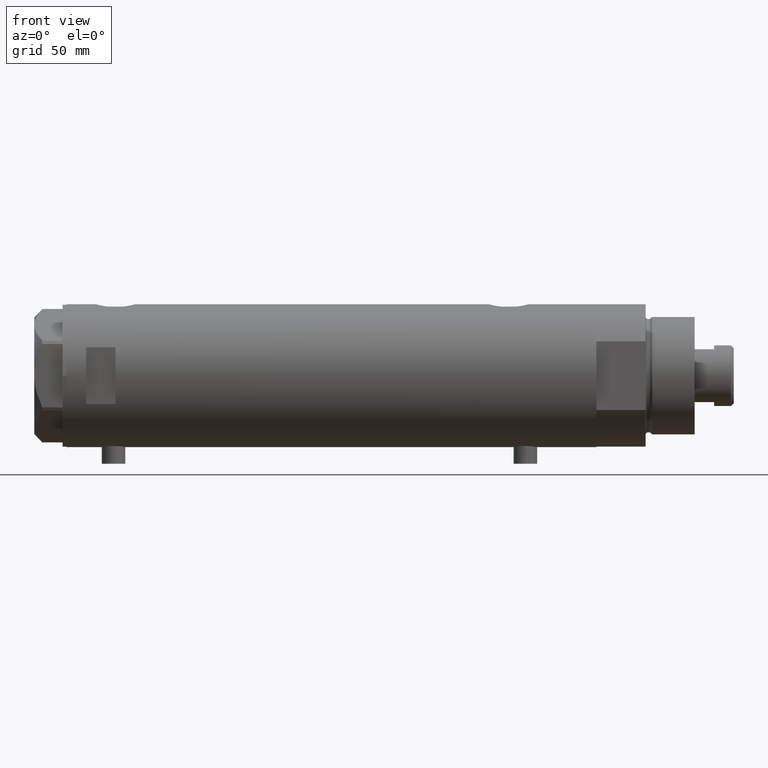
[diagram: clean part render]
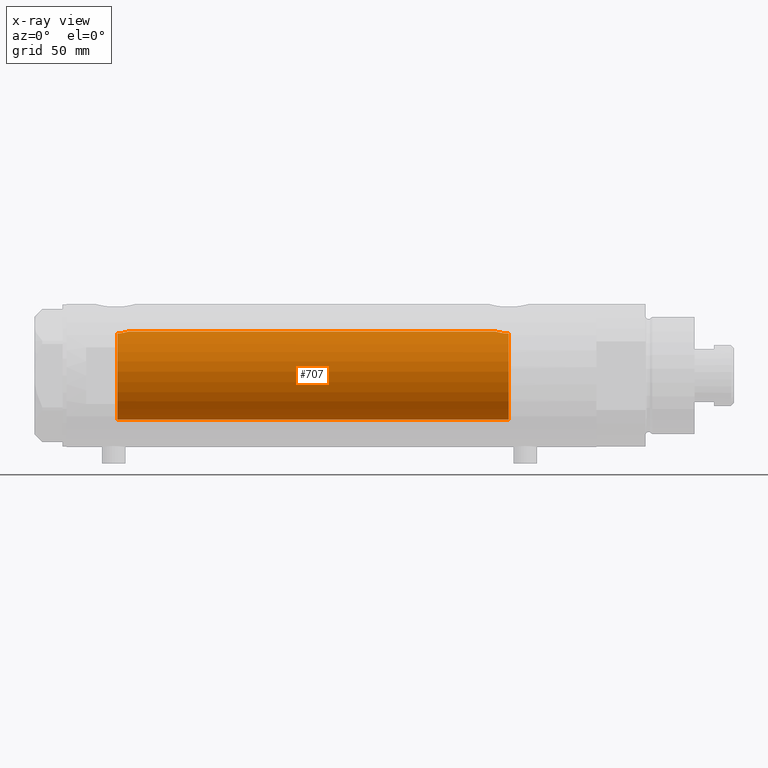
[diagram: x-ray — body ghosted, one internal face saturated and labeled with its STEP entity id]
A machine part, front view, then the same camera in x-ray: the body is ghosted and one INTERNAL B-rep face — a face not visible from any outside direction — is saturated and labeled: STEP entity #707.
In plain terms, the highlighted cylindrical surface (partial cylindrical patch) has radius 22.5 mm, axis along (1, 0, -0).
Its self-contained STEP definition (entity closure, byte-faithful):
#21 = VECTOR ( 'NONE', #246, 1000.000000000000000 ) ;
#148 = AXIS2_PLACEMENT_3D ( 'NONE', #4270, #1979, #1263 ) ;
#210 = CARTESIAN_POINT ( 'NONE',  ( 21.53958216864941733, -6.503568251352485952, 109.3999999999999915 ) ) ;
#246 = DIRECTION ( 'NONE',  ( -0.000000000000000000, -0.000000000000000000, -1.000000000000000000 ) ) ;
#257 = CARTESIAN_POINT ( 'NONE',  ( 21.58054822171799714, -6.366927345060002352, -88.88402244069204983 ) ) ;
#287 = CARTESIAN_POINT ( 'NONE',  ( 0.000000000000000000, 0.000000000000000000, 109.3999999999999915 ) ) ;
#307 = CARTESIAN_POINT ( 'NONE',  ( 21.94965745907476773, -4.947937303812818044, -86.25715039555707619 ) ) ;
#445 = AXIS2_PLACEMENT_3D ( 'NONE', #287, #929, #1560 ) ;
#489 = CARTESIAN_POINT ( 'NONE',  ( 22.30010606974974863, -3.011418659624944372, 104.5367890168579663 ) ) ;
#507 = DIRECTION ( 'NONE',  ( -0.000000000000000000, -0.000000000000000000, -1.000000000000000000 ) ) ;
#581 = ORIENTED_EDGE ( 'NONE', *, *, #1146, .F. ) ;
#606 = CARTESIAN_POINT ( 'NONE',  ( 21.76737372098157763, -5.695831585513579043, -87.29847891606891608 ) ) ;
#612 = CARTESIAN_POINT ( 'NONE',  ( 21.58601844322714669, -6.349099877921651647, 108.6290481141031563 ) ) ;
#675 = ORIENTED_EDGE ( 'NONE', *, *, #2461, .T. ) ;
#707 = ADVANCED_FACE ( 'NONE', ( #3527 ), #1731, .F. ) ;
#751 = VECTOR ( 'NONE', #507, 1000.000000000000000 ) ;
#768 = VERTEX_POINT ( 'NONE', #3603 ) ;
#837 = CARTESIAN_POINT ( 'NONE',  ( 22.34502592404423638, -2.661921217589550803, 104.3697586785211939 ) ) ;
#929 = DIRECTION ( 'NONE',  ( 0.000000000000000000, 0.000000000000000000, 1.000000000000000000 ) ) ;
#1001 = EDGE_CURVE ( 'NONE', #1873, #2384, #2899, .T. ) ;
#1003 = CARTESIAN_POINT ( 'NONE',  ( 22.47508397315214523, -1.079737406574094560, -84.10558251353130288 ) ) ;
#1091 = CARTESIAN_POINT ( 'NONE',  ( -22.50000000000000355, 0.000000000000000000, -90.59999999999998010 ) ) ;
#1146 = EDGE_CURVE ( 'NONE', #3305, #4378, #1215, .T. ) ;
#1215 = B_SPLINE_CURVE_WITH_KNOTS ( 'NONE', 3,
 ( #3988, #1533, #3645, #3918, #3218, #1862, #3236, #837, #489, #1877, #3252, #1969, #4438, #1620, #1436, #3792, #1354, #4086, #1327, #612, #1673, #210 ),
 .UNSPECIFIED., .F., .F.,
 ( 4, 2, 2, 2, 2, 2, 2, 2, 2, 2, 4 ),
 ( 0.000000000000000000, 0.001167753031984884466, 0.001751629547977323013, 0.002335506063969761126, 0.003503259095954651663, 0.004087135611947107991, 0.004671012127939563885, 0.005838765159924475673, 0.007006518191909386593, 0.008174271223894297514, 0.009342024255879211037 ),
 .UNSPECIFIED. ) ;
#1263 = DIRECTION ( 'NONE',  ( -1.000000000000000000, 0.000000000000000000, 0.000000000000000000 ) ) ;
#1270 = CARTESIAN_POINT ( 'NONE',  ( 21.53958216864941733, -6.503568251352485952, 109.3999999999999915 ) ) ;
#1291 = B_SPLINE_CURVE_WITH_KNOTS ( 'NONE', 3,
 ( #3660, #3383, #1645, #257, #2689, #3094, #1689, #606, #3077, #1714, #4384, #307, #3004, #4475, #1963, #2643, #1323, #4456, #3050, #1003, #1374, #4432, #2719, #3337 ),
 .UNSPECIFIED., .F., .F.,
 ( 4, 2, 2, 2, 2, 2, 2, 2, 2, 2, 2, 4 ),
 ( 0.01034583194474684824, 0.01163831905076679121, 0.01293080615678673592, 0.01357704970979672736, 0.01422329326280671880, 0.01486953681581670850, 0.01551578036882670167, 0.01680826747484668107, 0.01810075458086666048, 0.01939324168688664335, 0.02003948523989663652, 0.02068572879290662969 ),
 .UNSPECIFIED. ) ;
#1323 = CARTESIAN_POINT ( 'NONE',  ( 22.31324851815826094, -2.920315458573307321, -84.68792883542266736 ) ) ;
#1327 = CARTESIAN_POINT ( 'NONE',  ( 21.65869182728109621, -6.096583454856811635, 107.8942047130795601 ) ) ;
#1354 = CARTESIAN_POINT ( 'NONE',  ( 21.80246547822149239, -5.562416037700062432, 106.8635862820582361 ) ) ;
#1374 = CARTESIAN_POINT ( 'NONE',  ( 22.48448975507857384, -0.8627579744204254553, -84.07320172378659606 ) ) ;
#1415 = DIRECTION ( 'NONE',  ( -0.000000000000000000, -0.000000000000000000, -1.000000000000000000 ) ) ;
#1436 = CARTESIAN_POINT ( 'NONE',  ( 21.97180182460413889, -4.853116730831949610, 105.9398793933508642 ) ) ;
#1533 = CARTESIAN_POINT ( 'NONE',  ( 22.50000000000000355, -0.3950131823107573270, 103.8200000000000074 ) ) ;
#1560 = DIRECTION ( 'NONE',  ( 1.000000000000000000, 0.000000000000000000, 0.000000000000000000 ) ) ;
#1620 = CARTESIAN_POINT ( 'NONE',  ( 22.03004750576872439, -4.584392313773037131, 105.6639649762145012 ) ) ;
#1645 = CARTESIAN_POINT ( 'NONE',  ( 21.52981735982749711, -6.536420260328984710, -89.72962480407468888 ) ) ;
#1673 = CARTESIAN_POINT ( 'NONE',  ( 21.55747828655794507, -6.444296957919021018, 109.0145250978095106 ) ) ;
#1689 = CARTESIAN_POINT ( 'NONE',  ( 21.71318796968428444, -5.899027407341884022, -87.67698536342957993 ) ) ;
#1714 = CARTESIAN_POINT ( 'NONE',  ( 21.85557760450272013, -5.347779544816336994, -86.76030284772028267 ) ) ;
#1731 = CYLINDRICAL_SURFACE ( 'NONE', #3900, 22.50000000000000355 ) ;
#1862 = CARTESIAN_POINT ( 'NONE',  ( 22.41838729966076826, -1.923945741267791609, 104.1045311859534195 ) ) ;
#1863 = CARTESIAN_POINT ( 'NONE',  ( 21.51635656889892800, -6.580000000000002736, -90.59999999999998010 ) ) ;
#1873 = VERTEX_POINT ( 'NONE', #1863 ) ;
#1877 = CARTESIAN_POINT ( 'NONE',  ( 22.22503367403958663, -3.510871893734214932, 104.8315576783196548 ) ) ;
#1963 = CARTESIAN_POINT ( 'NONE',  ( 22.14149984669489157, -4.016690124115201321, -85.37069324031261885 ) ) ;
#1969 = CARTESIAN_POINT ( 'NONE',  ( 22.14407575385478921, -3.989443360685411832, 105.1637256297126157 ) ) ;
#1979 = DIRECTION ( 'NONE',  ( 0.000000000000000000, 0.000000000000000000, -1.000000000000000000 ) ) ;
#2212 = EDGE_CURVE ( 'NONE', #1873, #768, #1291, .T. ) ;
#2384 = VERTEX_POINT ( 'NONE', #1091 ) ;
#2461 = EDGE_CURVE ( 'NONE', #3169, #4378, #3685, .T. ) ;
#2643 = CARTESIAN_POINT ( 'NONE',  ( 22.25875518649490559, -3.305696985817205835, -84.89458010501985541 ) ) ;
#2689 = CARTESIAN_POINT ( 'NONE',  ( 21.61760927586798431, -6.241696587716365485, -88.47279459237279298 ) ) ;
#2719 = CARTESIAN_POINT ( 'NONE',  ( 22.50000000000000711, -0.2154191524768910848, -84.01999999999998181 ) ) ;
#2722 = EDGE_LOOP ( 'NONE', ( #581, #3766, #3658, #3183, #3669, #675 ) ) ;
#2756 = CARTESIAN_POINT ( 'NONE',  ( 0.000000000000000000, 0.000000000000000000, 135.4000000000000057 ) ) ;
#2899 = CIRCLE ( 'NONE', #148, 22.50000000000000355 ) ;
#2930 = CARTESIAN_POINT ( 'NONE',  ( 22.50000000000000355, 2.755455298081545172E-15, 135.4000000000000057 ) ) ;
#3004 = CARTESIAN_POINT ( 'NONE',  ( 21.98210460142358968, -4.802207463187402325, -86.09652004334174080 ) ) ;
#3050 = CARTESIAN_POINT ( 'NONE',  ( 22.43844456282249666, -1.716722304487073636, -84.23314599255652979 ) ) ;
#3077 = CARTESIAN_POINT ( 'NONE',  ( 21.79602751566978824, -5.585535159907477620, -87.11520197735673321 ) ) ;
#3094 = CARTESIAN_POINT ( 'NONE',  ( 21.68753676189998458, -5.992345198295746300, -87.87327232579065139 ) ) ;
#3169 = VERTEX_POINT ( 'NONE', #4397 ) ;
#3183 = ORIENTED_EDGE ( 'NONE', *, *, #1001, .T. ) ;
#3218 = CARTESIAN_POINT ( 'NONE',  ( 22.44752031034920492, -1.547413406105163203, 104.0015621785797180 ) ) ;
#3236 = CARTESIAN_POINT ( 'NONE',  ( 22.40145249794127125, -2.111617392236895263, 104.1649554348197455 ) ) ;
#3252 = CARTESIAN_POINT ( 'NONE',  ( 22.19872433573119963, -3.673198495424855992, 104.9372314324827613 ) ) ;
#3297 = LINE ( 'NONE', #2930, #751 ) ;
#3305 = VERTEX_POINT ( 'NONE', #3516 ) ;
#3337 = CARTESIAN_POINT ( 'NONE',  ( 22.50000000000000355, 8.058593785575293352E-16, -84.01999999999998181 ) ) ;
#3373 = EDGE_CURVE ( 'NONE', #3305, #768, #3297, .T. ) ;
#3383 = CARTESIAN_POINT ( 'NONE',  ( 21.51635656889893511, -6.580000000000002736, -90.16825681860746045 ) ) ;
#3516 = CARTESIAN_POINT ( 'NONE',  ( 22.50000000000000355, 0.000000000000000000, 103.8199999999999932 ) ) ;
#3527 = FACE_OUTER_BOUND ( 'NONE', #2722, .T. ) ;
#3603 = CARTESIAN_POINT ( 'NONE',  ( 22.50000000000000355, 8.058593785575293352E-16, -84.01999999999998181 ) ) ;
#3645 = CARTESIAN_POINT ( 'NONE',  ( 22.48961206562542259, -0.7836756559690466473, 103.8552765327437442 ) ) ;
#3658 = ORIENTED_EDGE ( 'NONE', *, *, #2212, .F. ) ;
#3660 = CARTESIAN_POINT ( 'NONE',  ( 21.51635656889892800, -6.580000000000002736, -90.59999999999998010 ) ) ;
#3669 = ORIENTED_EDGE ( 'NONE', *, *, #4363, .F. ) ;
#3685 = CIRCLE ( 'NONE', #445, 22.50000000000000355 ) ;
#3725 = CARTESIAN_POINT ( 'NONE',  ( -22.50000000000000355, 0.000000000000000000, 135.4000000000000057 ) ) ;
#3766 = ORIENTED_EDGE ( 'NONE', *, *, #3373, .T. ) ;
#3792 = CARTESIAN_POINT ( 'NONE',  ( 21.85824266975972918, -5.341352339310155628, 106.5379574036161614 ) ) ;
#3900 = AXIS2_PLACEMENT_3D ( 'NONE', #2756, #1415, #4117 ) ;
#3918 = CARTESIAN_POINT ( 'NONE',  ( 22.45982135096091525, -1.357617207441327301, 103.9586442640378436 ) ) ;
#3988 = CARTESIAN_POINT ( 'NONE',  ( 22.50000000000000355, 0.000000000000000000, 103.8199999999999932 ) ) ;
#4086 = CARTESIAN_POINT ( 'NONE',  ( 21.70285280737213540, -5.939204755440065320, 107.5412343513558397 ) ) ;
#4117 = DIRECTION ( 'NONE',  ( -1.000000000000000000, 0.000000000000000000, 0.000000000000000000 ) ) ;
#4270 = CARTESIAN_POINT ( 'NONE',  ( 0.000000000000000000, 0.000000000000000000, -90.59999999999998010 ) ) ;
#4363 = EDGE_CURVE ( 'NONE', #3169, #2384, #4398, .T. ) ;
#4378 = VERTEX_POINT ( 'NONE', #1270 ) ;
#4384 = CARTESIAN_POINT ( 'NONE',  ( 21.88647530142791808, -5.220320393727287289, -86.58868086085045945 ) ) ;
#4397 = CARTESIAN_POINT ( 'NONE',  ( -22.50000000000000355, 0.000000000000000000, 109.3999999999999915 ) ) ;
#4398 = LINE ( 'NONE', #3725, #21 ) ;
#4432 = CARTESIAN_POINT ( 'NONE',  ( 22.49690699366424695, -0.4310528819996864991, -84.03055249859411902 ) ) ;
#4438 = CARTESIAN_POINT ( 'NONE',  ( 22.11568811446340277, -4.143519122923664533, 105.2848050441608905 ) ) ;
#4456 = CARTESIAN_POINT ( 'NONE',  ( 22.40278435593408091, -2.127100118045536892, -84.35850395174202276 ) ) ;
#4475 = CARTESIAN_POINT ( 'NONE',  ( 22.07839819281284477, -4.346355962099932135, -85.64115912649135964 ) ) ;